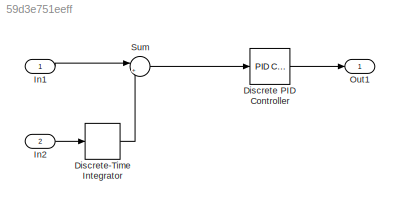
MODEL slx_59d3e751eeff
KIND model
CONFIG AbsTol = auto
CONFIG EnableMultiTasking = off
CONFIG FixedStep = auto
CONFIG MaxStep = auto
CONFIG MinStep = auto
CONFIG RelTol = 1e-3
CONFIG SampleTimeConstraint = Unconstrained
CONFIG SolverName = VariableStepAuto
CONFIG StartTime = 0.0
CONFIG StopTime = 10.0
BLOCK [Reference] Discrete PID Controller  REF=slpidlib/PID Controller
  LibrarySourceBlock = simulink/Discrete/Discrete PID Controller
  SourceBlock = slpidlib/PID Controller
  SourceType = PID 1dof
BLOCK [DiscreteIntegrator] Discrete-Time Integrator
  ICPrevOutput = DiscIntNeverNeededParam
  ICPrevScaledInput = DiscIntNeverNeededParam
  InitialConditionSetting = Auto
  SampleTime = -1
BLOCK [Inport] In1
BLOCK [Inport] In2
  Port = 2
BLOCK [Outport] Out1
BLOCK [Sum] Sum
  Inputs = |+-
LINE Discrete PID Controller:1 -> Out1:1
LINE Discrete-Time Integrator:1 -> Sum:2
LINE In1:1 -> Sum:1
LINE In2:1 -> Discrete-Time Integrator:1
LINE Sum:1 -> Discrete PID Controller:1
